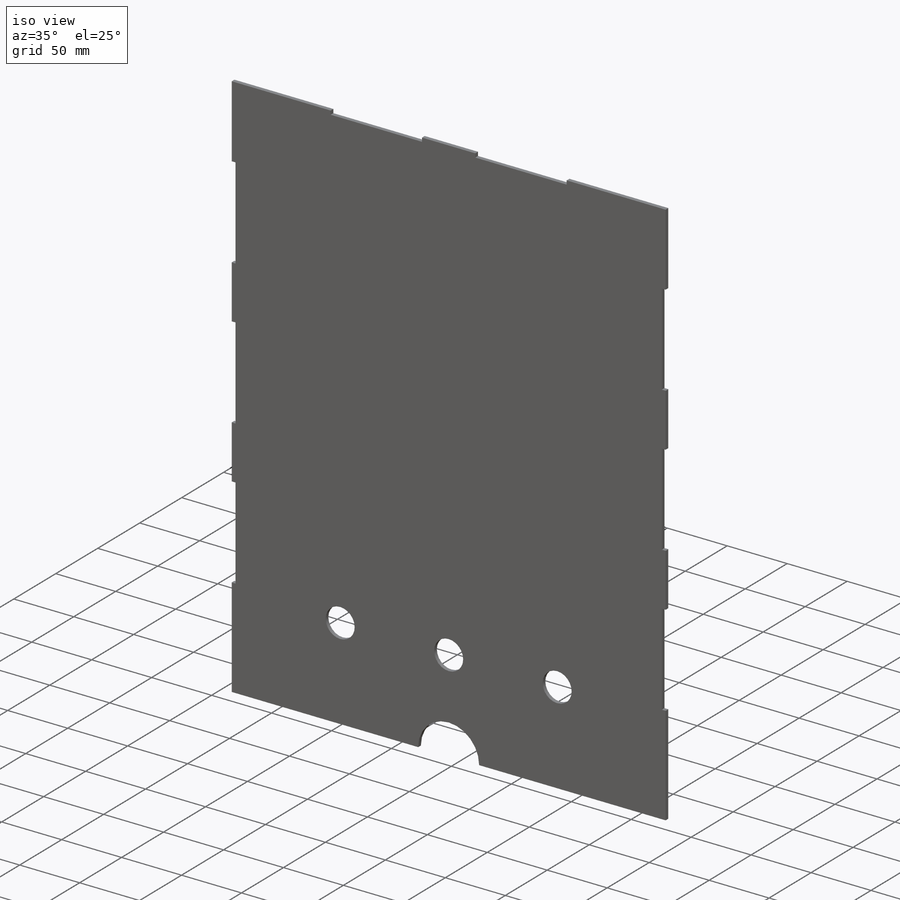
[diagram: iso view]
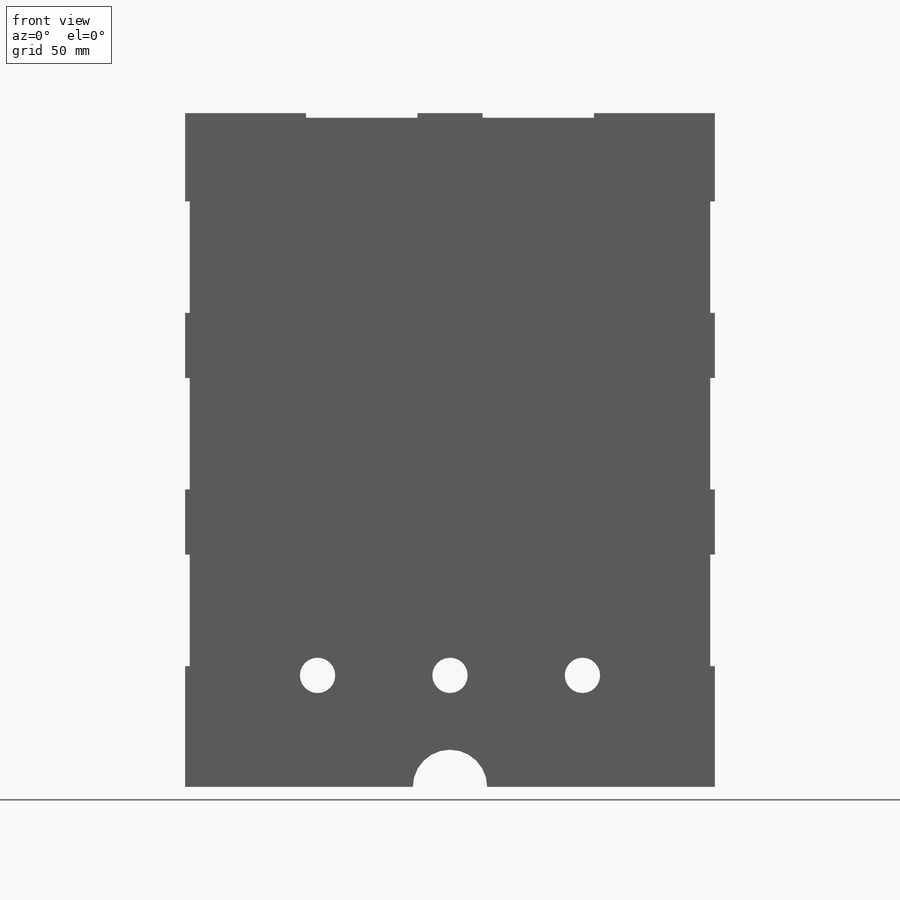
[diagram: front view]
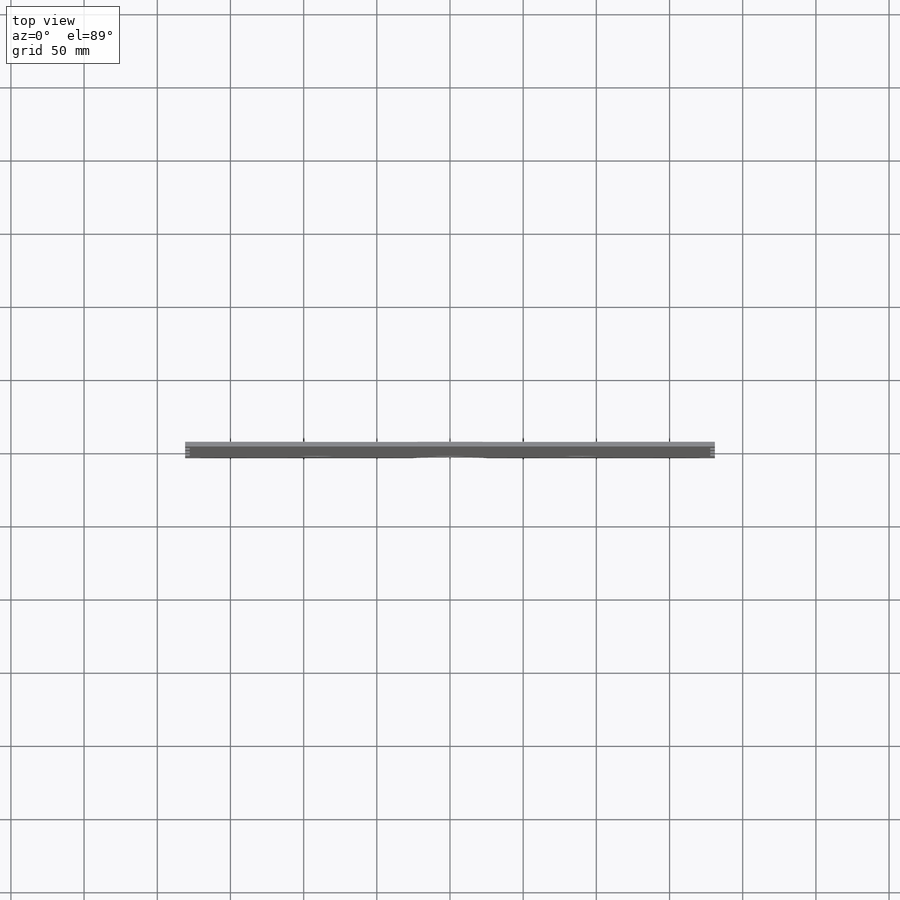
[diagram: top view]
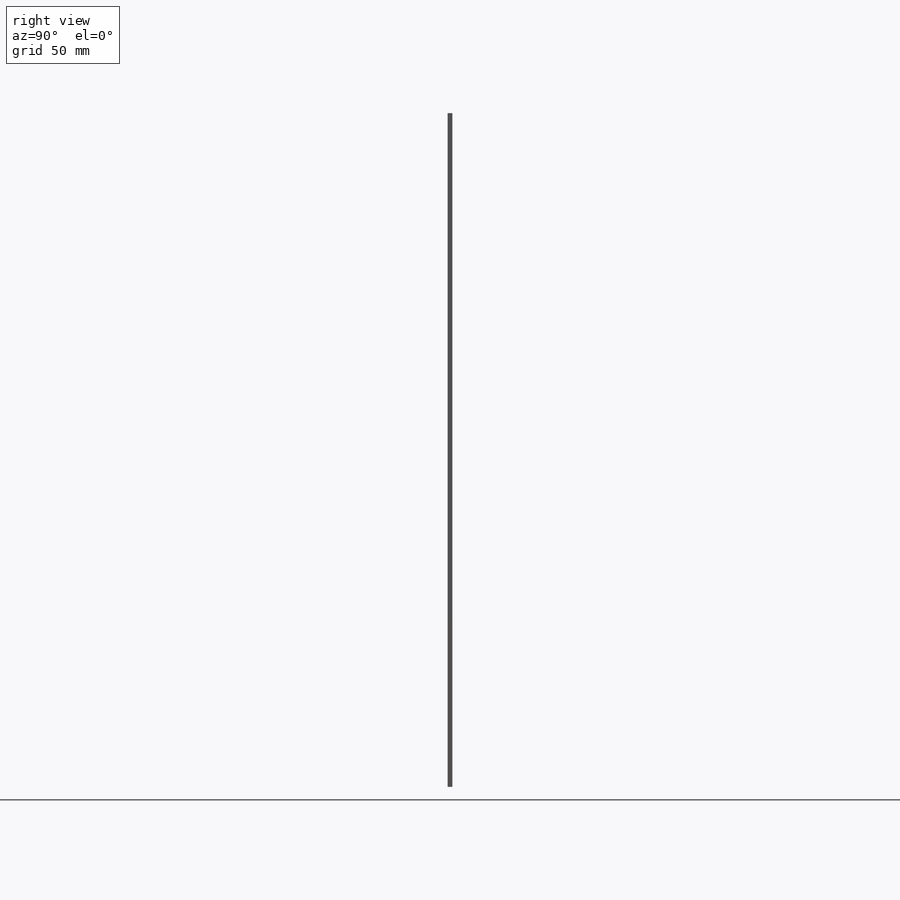
[diagram: right view]
SOLIDWORKS PART (.sldprt)
format: sldprt  version: not decoded by parser v0  size: 278,016 bytes
history: native  units: mm
features: sketch x4, cut_extrude x2, material x1, extrude x1 (+12 scaffold rows collapsed)
feature tree (20):
  scaffold x12  (default folders/planes/origin — collapsed)
  material  "Material <not specified>"
  sketch  "Sketch1"  dims[D1=460.375mm D2=361.95mm]
  extrude  "Boss-Extrude1"  Depth=3.175mm
  sketch  "Sketch2"  dims[c1.D1=3.175mm c1.D2=3.175mm c1.D3=3.175mm c1.D4=76.2mm c1.D5=76.2mm c1.D6=76.2mm c1.D7=~115.358418mm c1.D8=~115.358418mm c1.D9=~115.358418mm c2.D7=76.2mm c2.D8=76.2mm c2.D9=76.2mm c2.D10=76.2mm c2.D11=76.2mm c2.D12=3.175mm c2.D13=3.175mm c2.D14=120.65mm c2.D15=120.65mm c3.D7=120.65mm c3.D8=120.65mm c3.D9=120.65mm]
  cut_extrude  "Cut-Extrude1"  Depth=3.175mm
  sketch  "Sketch3"  dims[D1=24.1554mm D2=24.1554mm D3=24.1554mm D8=25.4mm D4=90.4875mm D5=90.4875mm D6=90.4875mm D7=76.2mm]
  cut_extrude  "Cut-Extrude2"  Depth=3.175mm
  sketch  "Sketch4"  dims[c1.D1=8.4836mm c1.D2=~8.477726mm c2.D1=25.4mm c2.D2=1.5875mm c2.D3=1.5875mm c3.D1=22.86mm c3.D2=120.65mm c3.D3=~59.228519mm]
decode coverage: 7 of 7 modeling features carry decoded parameters
note: ~ marks probable driven/reference dimensions
note: suppression state not decoded; provenance and decode notes live in map.json
